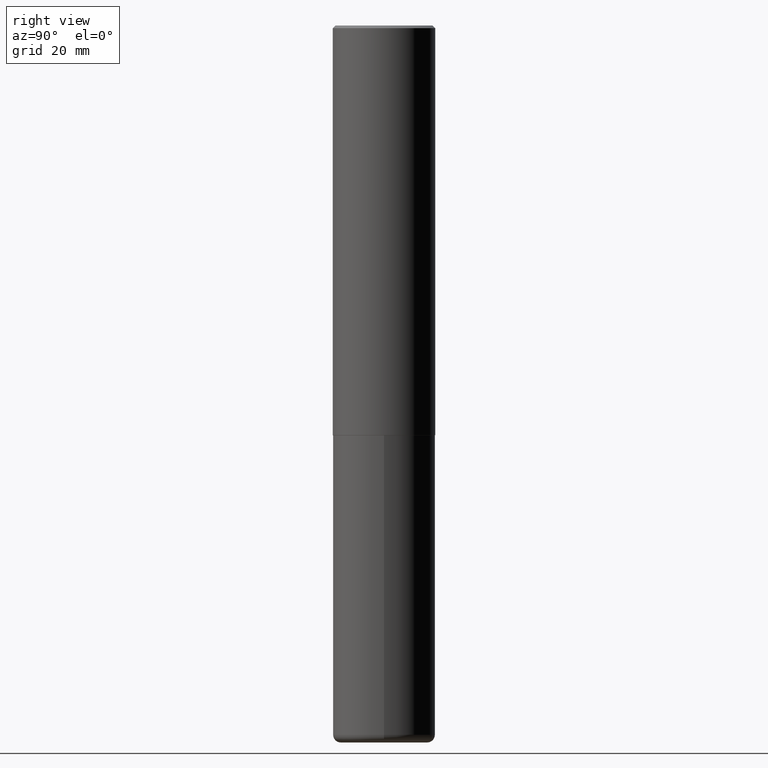
[diagram: clean part render]
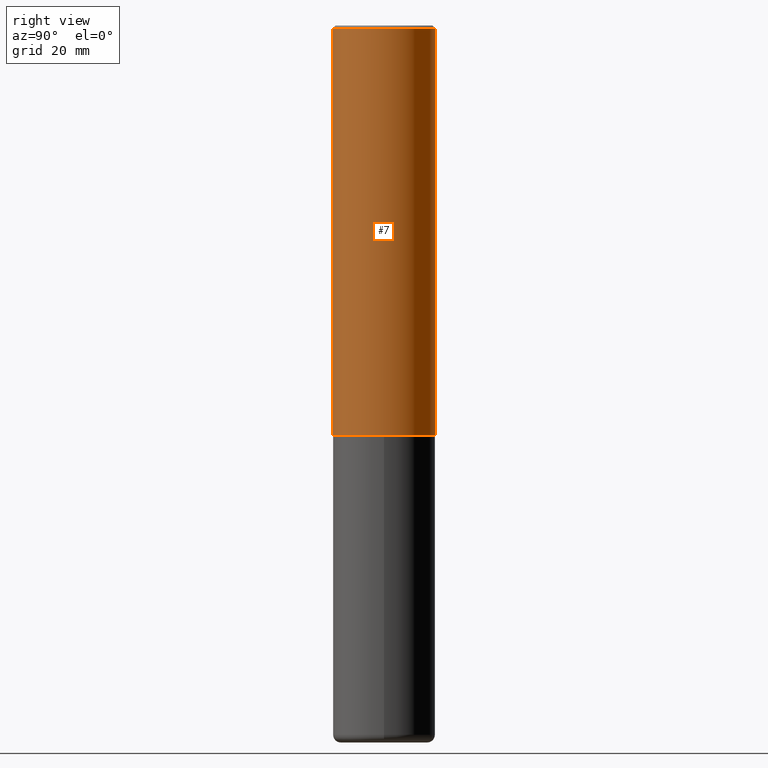
[diagram: same view with one face highlighted and labeled with its STEP entity id]
A machine part, right view. The second image highlights one B-rep face of the part: STEP entity #7.
In plain terms, the highlighted cylindrical surface (partial cylindrical patch) has radius 10 mm, axis along (-0, 0, 1).
Its self-contained STEP definition (entity closure, byte-faithful):
#7 = ADVANCED_FACE ( 'NONE', ( #215 ), #346, .T. ) ;
#18 = CARTESIAN_POINT ( 'NONE',  ( 2.797406750687554229E-15, 0.3936999999999892808, -3.148600000000001398 ) ) ;
#22 = AXIS2_PLACEMENT_3D ( 'NONE', #156, #309, #279 ) ;
#69 = DIRECTION ( 'NONE',  ( -2.447621189918198751E-29, 3.488399002831325748E-15, 1.000000000000000000 ) ) ;
#95 = CARTESIAN_POINT ( 'NONE',  ( 2.749192406205084005E-15, 0.3937000000000000499, -0.02000000000000144718 ) ) ;
#104 = EDGE_LOOP ( 'NONE', ( #166, #160, #269, #143 ) ) ;
#129 = EDGE_CURVE ( 'NONE', #223, #392, #371, .T. ) ;
#143 = ORIENTED_EDGE ( 'NONE', *, *, #209, .F. ) ;
#156 = CARTESIAN_POINT ( 'NONE',  ( 4.895242379836416489E-31, -6.976798005662675704E-17, -0.02000000000000007327 ) ) ;
#157 = DIRECTION ( 'NONE',  ( -2.447621189918198751E-29, 3.488399002831325748E-15, 1.000000000000000000 ) ) ;
#159 = LINE ( 'NONE', #354, #189 ) ;
#160 = ORIENTED_EDGE ( 'NONE', *, *, #289, .T. ) ;
#166 = ORIENTED_EDGE ( 'NONE', *, *, #293, .T. ) ;
#167 = VERTEX_POINT ( 'NONE', #18 ) ;
#189 = VECTOR ( 'NONE', #69, 39.37007874015748143 ) ;
#202 = DIRECTION ( 'NONE',  ( -2.447621189918199031E-29, 3.488399002831325748E-15, 1.000000000000000000 ) ) ;
#209 = EDGE_CURVE ( 'NONE', #225, #223, #406, .T. ) ;
#210 = DIRECTION ( 'NONE',  ( -6.982962677686265922E-15, -1.000000000000000000, 3.488399002831326143E-15 ) ) ;
#215 = FACE_OUTER_BOUND ( 'NONE', #104, .T. ) ;
#223 = VERTEX_POINT ( 'NONE', #315 ) ;
#225 = VERTEX_POINT ( 'NONE', #379 ) ;
#247 = CARTESIAN_POINT ( 'NONE',  ( -2.749192406205084400E-15, -0.3937000000000002164, 1.373382687414693916E-15 ) ) ;
#269 = ORIENTED_EDGE ( 'NONE', *, *, #129, .F. ) ;
#271 = AXIS2_PLACEMENT_3D ( 'NONE', #296, #202, #210 ) ;
#279 = DIRECTION ( 'NONE',  ( -6.982962677686265133E-15, -1.000000000000000000, 3.491137977679279029E-15 ) ) ;
#285 = VECTOR ( 'NONE', #157, 39.37007874015748143 ) ;
#289 = EDGE_CURVE ( 'NONE', #167, #392, #159, .T. ) ;
#293 = EDGE_CURVE ( 'NONE', #225, #167, #372, .T. ) ;
#296 = CARTESIAN_POINT ( 'NONE',  ( 0.000000000000000000, 0.000000000000000000, 0.000000000000000000 ) ) ;
#298 = AXIS2_PLACEMENT_3D ( 'NONE', #328, #387, #393 ) ;
#309 = DIRECTION ( 'NONE',  ( -2.447621189918199031E-29, 3.488399002831325748E-15, 1.000000000000000000 ) ) ;
#315 = CARTESIAN_POINT ( 'NONE',  ( -2.700978061722651647E-15, -0.3937000000000001609, -0.01999999999999869937 ) ) ;
#328 = CARTESIAN_POINT ( 'NONE',  ( 7.706580078576441267E-29, -1.098357310031471265E-14, -3.148600000000000065 ) ) ;
#346 = CYLINDRICAL_SURFACE ( 'NONE', #271, 0.3937000000000002164 ) ;
#354 = CARTESIAN_POINT ( 'NONE',  ( 2.797406750687515575E-15, 0.3937000000000002164, -1.373382687414693916E-15 ) ) ;
#371 = CIRCLE ( 'NONE', #22, 0.3937000000000001054 ) ;
#372 = CIRCLE ( 'NONE', #298, 0.3937000000000002720 ) ;
#379 = CARTESIAN_POINT ( 'NONE',  ( -2.749192406205007880E-15, -0.3937000000000113187, -3.148599999999998289 ) ) ;
#387 = DIRECTION ( 'NONE',  ( -2.447621189918199031E-29, 3.488399002831325748E-15, 1.000000000000000000 ) ) ;
#392 = VERTEX_POINT ( 'NONE', #95 ) ;
#393 = DIRECTION ( 'NONE',  ( -6.982962677686265922E-15, -1.000000000000000000, 4.163344669033672479E-15 ) ) ;
#406 = LINE ( 'NONE', #247, #285 ) ;